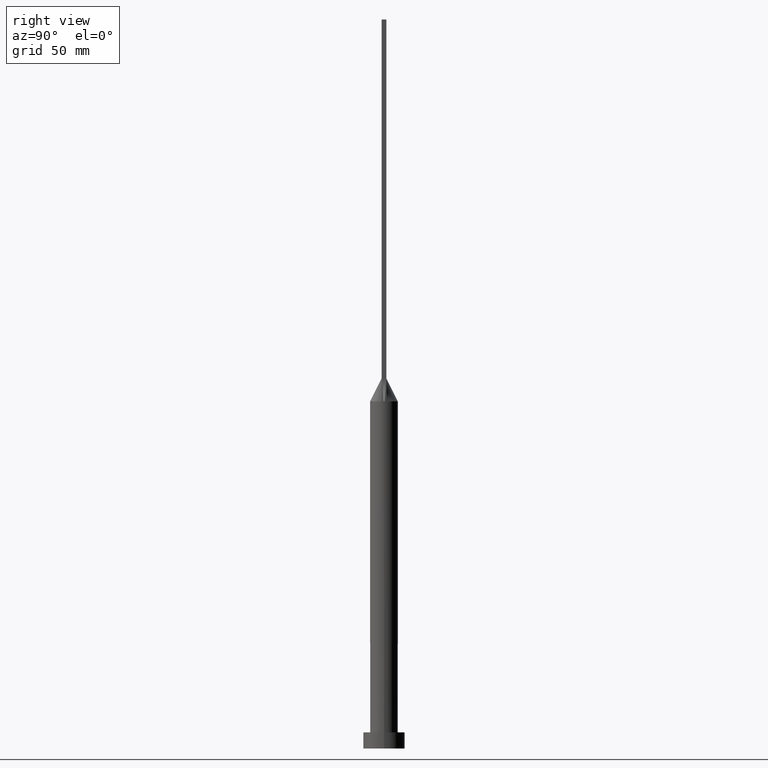
[diagram: clean part render]
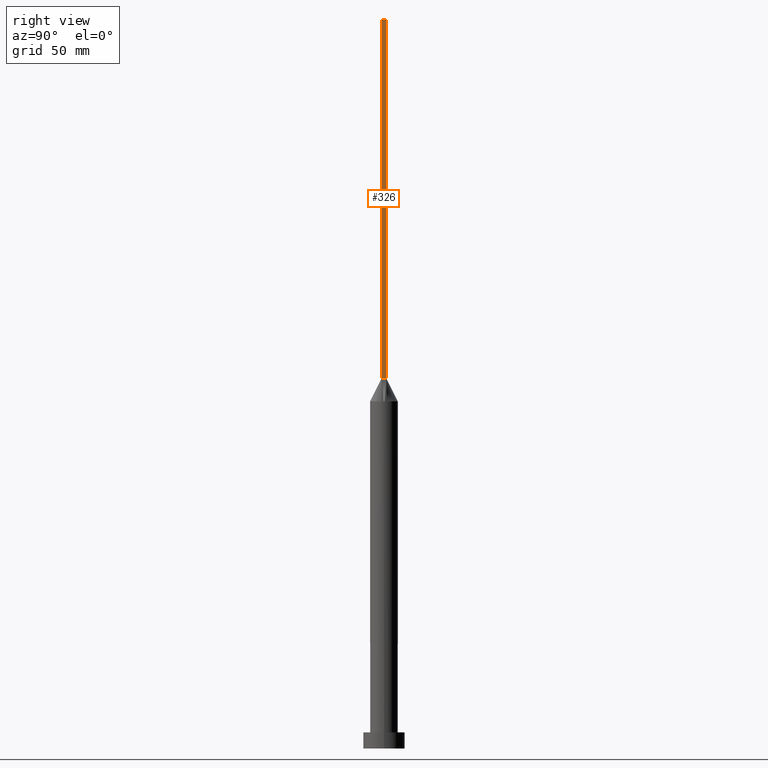
[diagram: same view with one face highlighted and labeled with its STEP entity id]
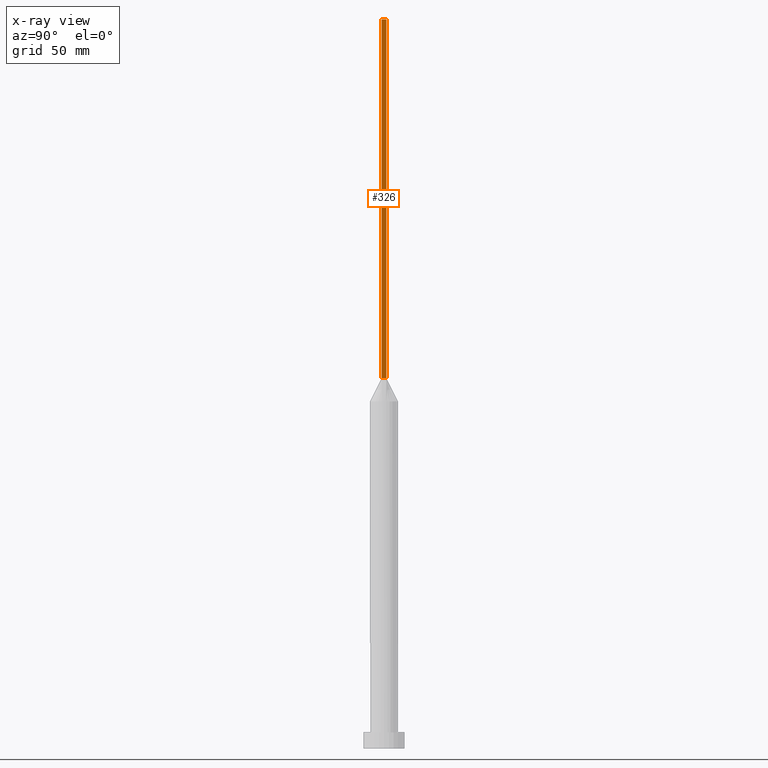
[diagram: x-ray of the same camera — body ghosted, the highlighted face saturated]
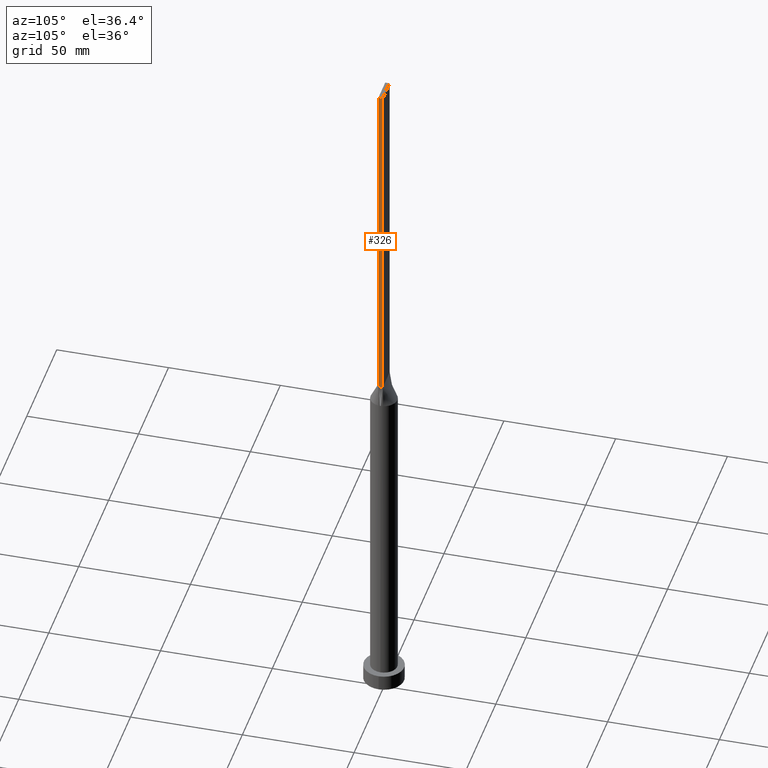
[diagram: same view with one face highlighted and labeled with its STEP entity id]
A machine part, right view. The second image highlights one B-rep face of the part: STEP entity #326.
The next image is the same camera in x-ray: the body ghosted, the highlighted face saturated — about 0% of this face is hidden behind the body in this view.
A second angle (auxiliary view) of the same face is appended — the face is thin or edge-on in the first view.
In plain terms, the highlighted planar face has unit normal (-1, 0, 0).
Its self-contained STEP definition (entity closure, byte-faithful):
#17 = EDGE_CURVE ( 'NONE', #111, #331, #187, .T. ) ;
#20 = CARTESIAN_POINT ( 'NONE',  ( 5.750000000000000000, 1.000000000000000000, 160.0000000000000000 ) ) ;
#26 = CARTESIAN_POINT ( 'NONE',  ( 5.750000000000000000, -0.9999999999999997780, 315.0000000000000000 ) ) ;
#38 = DIRECTION ( 'NONE',  ( -0.000000000000000000, -0.000000000000000000, -1.000000000000000000 ) ) ;
#63 = CARTESIAN_POINT ( 'NONE',  ( 5.750000000000000000, -0.9999999999999997780, 315.0000000000000000 ) ) ;
#64 = AXIS2_PLACEMENT_3D ( 'NONE', #63, #451, #165 ) ;
#90 = EDGE_LOOP ( 'NONE', ( #164, #545, #189, #286 ) ) ;
#108 = FACE_OUTER_BOUND ( 'NONE', #90, .T. ) ;
#111 = VERTEX_POINT ( 'NONE', #515 ) ;
#121 = EDGE_CURVE ( 'NONE', #430, #331, #275, .T. ) ;
#164 = ORIENTED_EDGE ( 'NONE', *, *, #17, .T. ) ;
#165 = DIRECTION ( 'NONE',  ( 0.000000000000000000, 0.000000000000000000, 1.000000000000000000 ) ) ;
#187 = LINE ( 'NONE', #377, #283 ) ;
#189 = ORIENTED_EDGE ( 'NONE', *, *, #521, .F. ) ;
#215 = DIRECTION ( 'NONE',  ( -0.000000000000000000, -0.000000000000000000, -1.000000000000000000 ) ) ;
#216 = VECTOR ( 'NONE', #38, 1000.000000000000000 ) ;
#267 = VECTOR ( 'NONE', #473, 1000.000000000000000 ) ;
#275 = LINE ( 'NONE', #468, #216 ) ;
#283 = VECTOR ( 'NONE', #459, 1000.000000000000000 ) ;
#286 = ORIENTED_EDGE ( 'NONE', *, *, #295, .T. ) ;
#295 = EDGE_CURVE ( 'NONE', #552, #111, #362, .T. ) ;
#326 = ADVANCED_FACE ( 'NONE', ( #108 ), #496, .F. ) ;
#331 = VERTEX_POINT ( 'NONE', #20 ) ;
#362 = LINE ( 'NONE', #404, #543 ) ;
#377 = CARTESIAN_POINT ( 'NONE',  ( 5.750000000000000000, 1.000000000000000000, 160.0000000000000000 ) ) ;
#385 = CARTESIAN_POINT ( 'NONE',  ( 5.750000000000000000, 1.000000000000000000, 315.0000000000000000 ) ) ;
#404 = CARTESIAN_POINT ( 'NONE',  ( 5.750000000000000000, -0.9999999999999997780, 315.0000000000000000 ) ) ;
#430 = VERTEX_POINT ( 'NONE', #385 ) ;
#451 = DIRECTION ( 'NONE',  ( -1.000000000000000000, 0.000000000000000000, 0.000000000000000000 ) ) ;
#459 = DIRECTION ( 'NONE',  ( -0.000000000000000000, 1.000000000000000000, -0.000000000000000000 ) ) ;
#468 = CARTESIAN_POINT ( 'NONE',  ( 5.750000000000000000, 1.000000000000000000, 315.0000000000000000 ) ) ;
#473 = DIRECTION ( 'NONE',  ( 0.000000000000000000, 1.000000000000000000, 0.000000000000000000 ) ) ;
#496 = PLANE ( 'NONE',  #64 ) ;
#515 = CARTESIAN_POINT ( 'NONE',  ( 5.750000000000000000, -0.9999999999999997780, 160.0000000000000000 ) ) ;
#521 = EDGE_CURVE ( 'NONE', #552, #430, #617, .T. ) ;
#543 = VECTOR ( 'NONE', #215, 1000.000000000000000 ) ;
#545 = ORIENTED_EDGE ( 'NONE', *, *, #121, .F. ) ;
#552 = VERTEX_POINT ( 'NONE', #26 ) ;
#574 = CARTESIAN_POINT ( 'NONE',  ( 5.750000000000000000, -0.9999999999999997780, 315.0000000000000000 ) ) ;
#617 = LINE ( 'NONE', #574, #267 ) ;